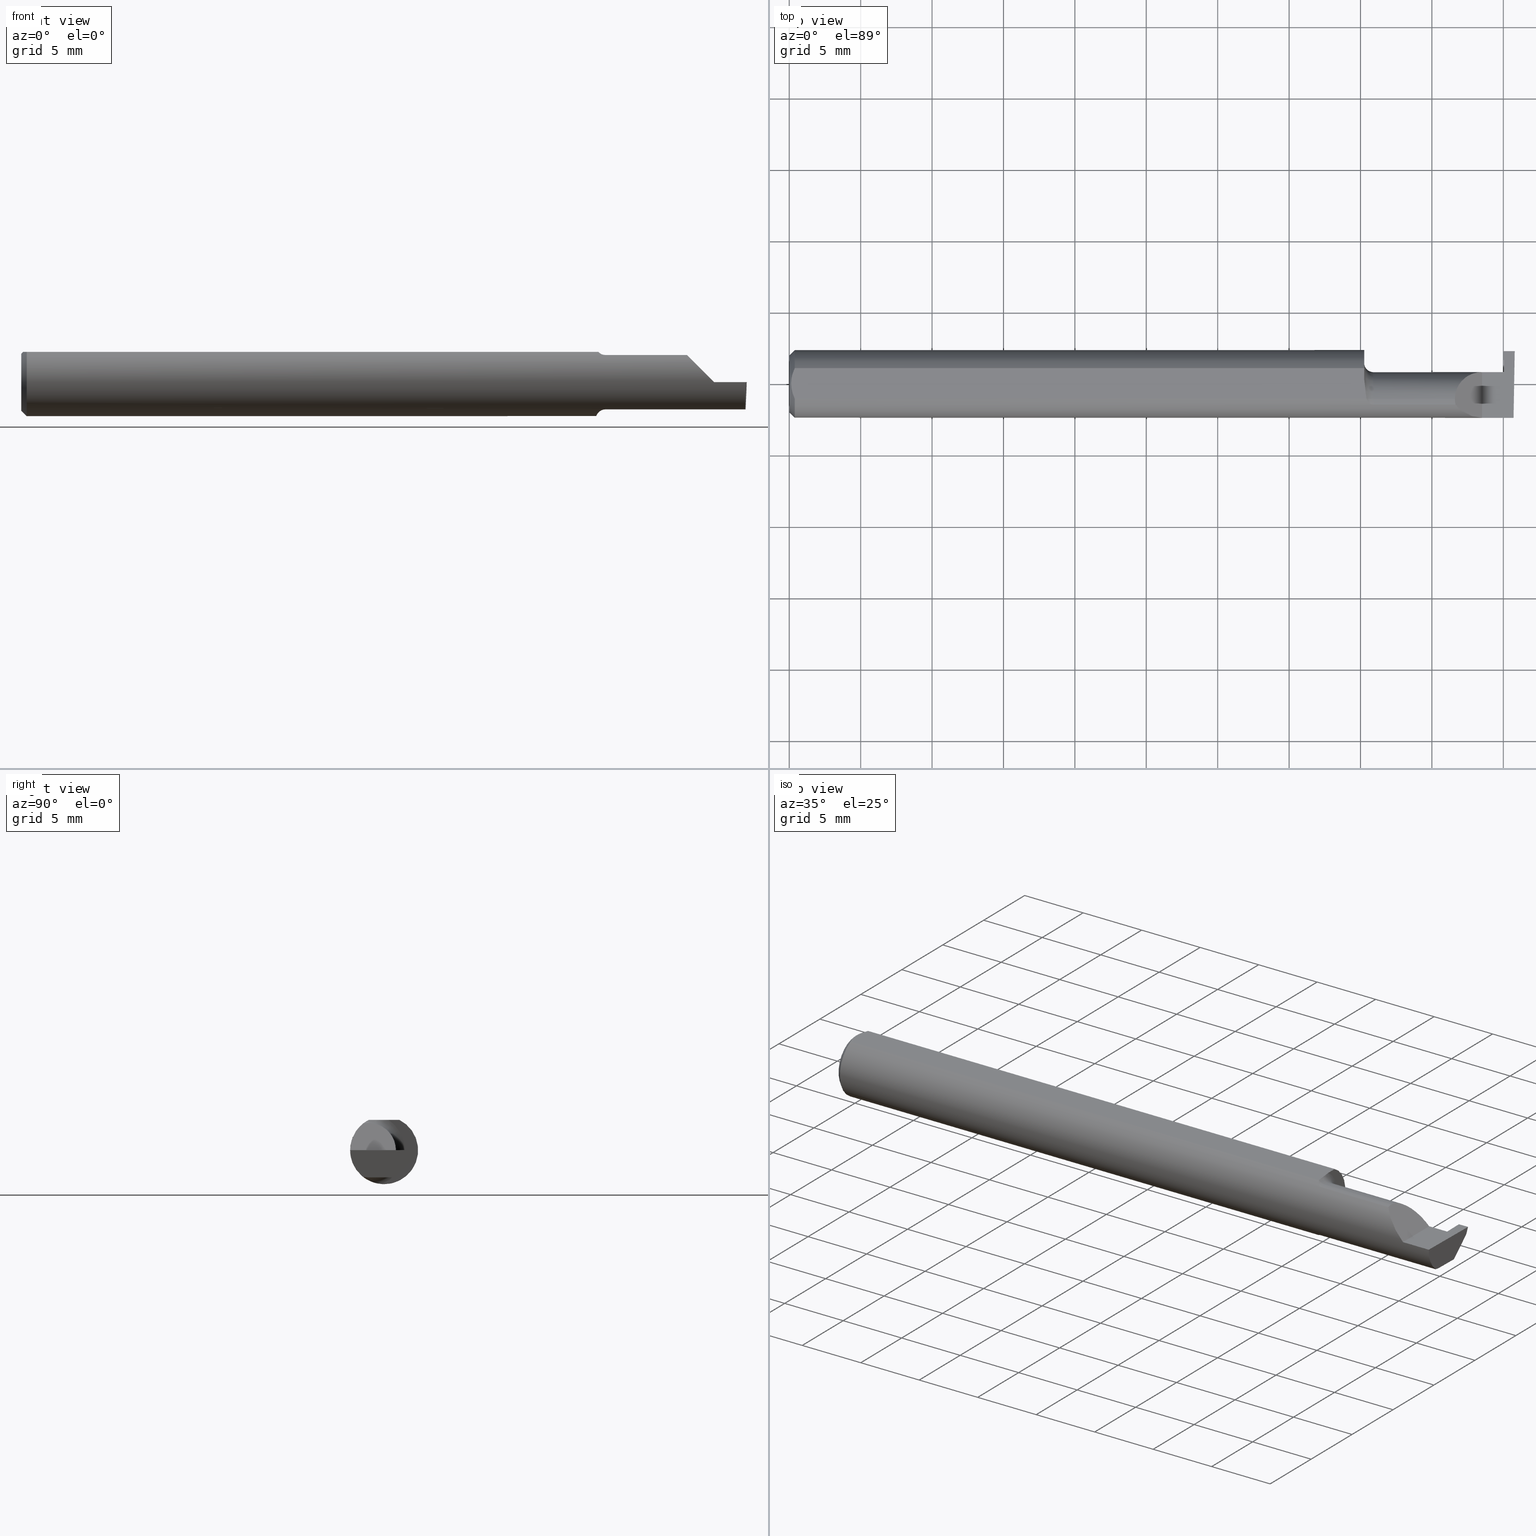
[diagram: canonical four-view strip — front | top / right | iso, engineering-drawing reading convention]
A machine part, canonical four-view strip (front | top / right | iso — engineering-drawing reading convention). The complete STEP part file that produces these views, byte-faithful:
ISO-10303-21;
HEADER;
FILE_DESCRIPTION (( 'STEP AP203' ),
    '1' );
FILE_NAME ('220671-GT030K-6.STEP',
    '2024-07-12T17:37:41',
    ( '' ),
    ( '' ),
    'SwSTEP 2.0',
    'SolidWorks 2024',
    '' );
FILE_SCHEMA (( 'CONFIG_CONTROL_DESIGN' ));
ENDSEC;

DATA;
#1 = AXIS2_PLACEMENT_3D ( 'NONE', #582, #761, #158 ) ;
#2 = CARTESIAN_POINT ( 'NONE',  ( 1.609999999999999654, -0.04259999999999997816, 0.07499999999999999722 ) ) ;
#3 = CARTESIAN_POINT ( 'NONE',  ( 0.004999999999999977553, 0.007308422719211852582, 0.08359999999999999376 ) ) ;
#4 = ORIENTED_EDGE ( 'NONE', *, *, #306, .F. ) ;
#5 = CC_DESIGN_PERSON_AND_ORGANIZATION_ASSIGNMENT ( #697, #511, ( #114 ) ) ;
#6 = LINE ( 'NONE', #779, #389 ) ;
#7 = ORIENTED_EDGE ( 'NONE', *, *, #758, .T. ) ;
#8 = ADVANCED_FACE ( 'NONE', ( #626 ), #497, .F. ) ;
#9 = VECTOR ( 'NONE', #384, 39.37007874015748143 ) ;
#10 = CARTESIAN_POINT ( 'NONE',  ( 1.910000000000000142, -0.09359999999999998876, 1.102182119232621301E-17 ) ) ;
#11 = AXIS2_PLACEMENT_3D ( 'NONE', #543, #486, #181 ) ;
#12 = LINE ( 'NONE', #178, #316 ) ;
#13 = DIRECTION ( 'NONE',  ( 0.02618093032612054533, 0.000000000000000000, 0.9996572206948034500 ) ) ;
#14 = ORIENTED_EDGE ( 'NONE', *, *, #604, .T. ) ;
#15 = CARTESIAN_POINT ( 'NONE',  ( 1.591356684838558300, -0.04259999999999997122, -0.08334386600104412568 ) ) ;
#16 = EDGE_CURVE ( 'NONE', #667, #491, #448, .T. ) ;
#17 = CARTESIAN_POINT ( 'NONE',  ( 1.910000000000000142, -0.1000000000000000056, 1.102182119232621301E-17 ) ) ;
#18 = CARTESIAN_POINT ( 'NONE',  ( 1.588953896433696000, -0.03733827064844358334, -0.08603332211978831356 ) ) ;
#19 = DIRECTION ( 'NONE',  ( 0.000000000000000000, 0.000000000000000000, -1.000000000000000000 ) ) ;
#20 =( BOUNDED_CURVE ( )  B_SPLINE_CURVE ( 3, ( #225, #472, #645, #701 ),
 .UNSPECIFIED., .F., .T. ) 
 B_SPLINE_CURVE_WITH_KNOTS ( ( 4, 4 ),
 ( 0.3794527164476041992, 0.5877155292608622350 ),
 .UNSPECIFIED. ) 
 CURVE ( )  GEOMETRIC_REPRESENTATION_ITEM ( )  RATIONAL_B_SPLINE_CURVE ( ( 1.000000000000000000, 0.9963888149483995926, 0.9963888149483995926, 1.000000000000000000 ) ) 
 REPRESENTATION_ITEM ( '' )  );
#21 = ORIENTED_EDGE ( 'NONE', *, *, #257, .T. ) ;
#22 = APPLICATION_PROTOCOL_DEFINITION ( 'international standard', 'config_control_design', 1994, #519 ) ;
#23 = DIRECTION ( 'NONE',  ( 0.000000000000000000, -1.000000000000000000, 3.463308682636258767E-16 ) ) ;
#24 = EDGE_LOOP ( 'NONE', ( #38, #138, #597, #428, #382, #530, #103 ) ) ;
#25 = APPROVAL_ROLE ( '' ) ;
#26 = CARTESIAN_POINT ( 'NONE',  ( 1.973213402547462803, -0.04260000000000001286, -0.07499999999999998335 ) ) ;
#27 = EDGE_CURVE ( 'NONE', #508, #108, #586, .T. ) ;
#28 = AXIS2_PLACEMENT_3D ( 'NONE', #422, #289, #353 ) ;
#29 = DIRECTION ( 'NONE',  ( -0.000000000000000000, 1.000000000000000000, -0.000000000000000000 ) ) ;
#30 = COORDINATED_UNIVERSAL_TIME_OFFSET ( 8, 0, .BEHIND. ) ;
#31 = CYLINDRICAL_SURFACE ( 'NONE', #642, 0.07499999999999999722 ) ;
#32 = EDGE_LOOP ( 'NONE', ( #191, #157, #342, #763, #459 ) ) ;
#33 = EDGE_CURVE ( 'NONE', #239, #719, #749, .T. ) ;
#34 = PERSON_AND_ORGANIZATION ( #744, #695 ) ;
#35 = VECTOR ( 'NONE', #665, 39.37007874015748143 ) ;
#36 = PERSON_AND_ORGANIZATION ( #744, #695 ) ;
#37 = CARTESIAN_POINT ( 'NONE',  ( 0.000000000000000000, 0.000000000000000000, 0.000000000000000000 ) ) ;
#38 = ORIENTED_EDGE ( 'NONE', *, *, #180, .F. ) ;
#39 = DIRECTION ( 'NONE',  ( 3.192376091677893247E-05, 0.9999999994904366085, -3.463309235184766513E-16 ) ) ;
#40 = EDGE_CURVE ( 'NONE', #288, #683, #569, .T. ) ;
#41 = CARTESIAN_POINT ( 'NONE',  ( 1.973215639910378627, 0.03244570701694830805, -0.07499697642507778539 ) ) ;
#42 = ORIENTED_EDGE ( 'NONE', *, *, #675, .F. ) ;
#43 = CARTESIAN_POINT ( 'NONE',  ( 1.591280153739604630, -0.04243240890922537339, 0.08342952773968856373 ) ) ;
#44 = CARTESIAN_POINT ( 'NONE',  ( 1.970187911046528351, 0.08532170653269689764, -0.01716285901624526114 ) ) ;
#45 = CIRCLE ( 'NONE', #652, 0.09359999999999998876 ) ;
#46 = ORIENTED_EDGE ( 'NONE', *, *, #474, .T. ) ;
#47 = DIRECTION ( 'NONE',  ( -0.03489418134011375294, -0.0006090802009084599154, 0.9993908270190957621 ) ) ;
#48 = ADVANCED_FACE ( 'NONE', ( #441 ), #78, .F. ) ;
#49 = APPROVAL_PERSON_ORGANIZATION ( #576, #646, #25 ) ;
#50 = CARTESIAN_POINT ( 'NONE',  ( 1.899999999999999911, 0.08348456554894213844, -0.01900000000000000300 ) ) ;
#51 = ORIENTED_EDGE ( 'NONE', *, *, #568, .F. ) ;
#52 = LINE ( 'NONE', #228, #63 ) ;
#53 = DIRECTION ( 'NONE',  ( -0.01744642479411312799, -0.9998477995484629233, 3.463134274570152404E-16 ) ) ;
#54 = EDGE_LOOP ( 'NONE', ( #501, #775, #408, #89, #227, #769, #351 ) ) ;
#55 = EDGE_CURVE ( 'NONE', #683, #322, #335, .T. ) ;
#56 = DIRECTION ( 'NONE',  ( -0.7071067811865460184, 0.000000000000000000, 0.7071067811865490160 ) ) ;
#57 = CARTESIAN_POINT ( 'NONE',  ( 1.601469028275930517, -0.05559939362423894915, 0.07530665289274067475 ) ) ;
#58 = EDGE_LOOP ( 'NONE', ( #251, #167, #302, #117, #714 ) ) ;
#59 = CARTESIAN_POINT ( 'NONE',  ( 1.609999999999999654, -0.04259999999999997122, -0.09999999999999999167 ) ) ;
#60 = CARTESIAN_POINT ( 'NONE',  ( 1.584999999999999964, -0.04259999999999998510, 0.000000000000000000 ) ) ;
#61 = ORIENTED_EDGE ( 'NONE', *, *, #196, .F. ) ;
#62 = CC_DESIGN_PERSON_AND_ORGANIZATION_ASSIGNMENT ( #401, #634, ( #199 ) ) ;
#63 = VECTOR ( 'NONE', #658, 39.37007874015748854 ) ;
#64 = CARTESIAN_POINT ( 'NONE',  ( 1.970027797685394821, 0.03157410243558826657, -0.01282266061342995228 ) ) ;
#65 = ADVANCED_FACE ( 'NONE', ( #563 ), #212, .F. ) ;
#66 = CARTESIAN_POINT ( 'NONE',  ( 1.999381723781206599, 0.08348456554894213844, -0.01900000000000000300 ) ) ;
#67 = ORIENTED_EDGE ( 'NONE', *, *, #330, .T. ) ;
#68 = VECTOR ( 'NONE', #29, 39.37007874015748143 ) ;
#69 = LINE ( 'NONE', #369, #334 ) ;
#70 = DIRECTION ( 'NONE',  ( -0.000000000000000000, 1.000000000000000000, 0.000000000000000000 ) ) ;
#71 = ORIENTED_EDGE ( 'NONE', *, *, #260, .F. ) ;
#72 = CARTESIAN_POINT ( 'NONE',  ( 1.972956086143512255, 0.03244268712522564713, -0.07004187842367261274 ) ) ;
#73 = AXIS2_PLACEMENT_3D ( 'NONE', #735, #125, #623 ) ;
#74 = ORIENTED_EDGE ( 'NONE', *, *, #604, .F. ) ;
#75 = CARTESIAN_POINT ( 'NONE',  ( 1.789749999999999730, -0.05810704225352112534, 0.07337936794867826185 ) ) ;
#76 = CARTESIAN_POINT ( 'NONE',  ( 1.593086474849918499, -0.04638796853538176834, -0.08140770120152256151 ) ) ;
#77 = VERTEX_POINT ( 'NONE', #748 ) ;
#78 = PLANE ( 'NONE',  #449 ) ;
#79 = VECTOR ( 'NONE', #506, 39.37007874015748143 ) ;
#80 = VERTEX_POINT ( 'NONE', #140 ) ;
#81 = APPROVAL_PERSON_ORGANIZATION ( #323, #303, #446 ) ;
#82 = CARTESIAN_POINT ( 'NONE',  ( 1.970284083932823727, 0.08348456554894213844, -0.01899999999999999953 ) ) ;
#83 = DIRECTION ( 'NONE',  ( -0.03084274406794414863, -0.7067703747110382073, -0.7067703747110356538 ) ) ;
#84 = CARTESIAN_POINT ( 'NONE',  ( 1.607653034764491506, -0.05810704225352129881, -0.07337936794867812307 ) ) ;
#85 = SECURITY_CLASSIFICATION_LEVEL ( 'unclassified' ) ;
#86 = CARTESIAN_POINT ( 'NONE',  ( 2.000000000000000000, -0.04259999999999999204, -0.07499999999999998335 ) ) ;
#87 = EDGE_CURVE ( 'NONE', #488, #508, #205, .T. ) ;
#88 = CARTESIAN_POINT ( 'NONE',  ( 2.000000000000000444, 0.09040000000000000813, -4.722041942173579765E-17 ) ) ;
#89 = ORIENTED_EDGE ( 'NONE', *, *, #55, .F. ) ;
#90 = APPROVAL_DATE_TIME ( #443, #646 ) ;
#91 = PLANE ( 'NONE',  #489 ) ;
#92 = EDGE_CURVE ( 'NONE', #705, #221, #635, .T. ) ;
#93 = CARTESIAN_POINT ( 'NONE',  ( 1.866066017177982594, 0.03240000000000000518, 0.04393398282201787380 ) ) ;
#94 = ORIENTED_EDGE ( 'NONE', *, *, #474, .F. ) ;
#95 = CARTESIAN_POINT ( 'NONE',  ( 1.609999999999999654, -0.04259999999999997816, 0.000000000000000000 ) ) ;
#96 =( BOUNDED_CURVE ( )  B_SPLINE_CURVE ( 3, ( #407, #214, #341, #349 ),
 .UNSPECIFIED., .F., .T. ) 
 B_SPLINE_CURVE_WITH_KNOTS ( ( 4, 4 ),
 ( 6.074922494366329140, 6.283185307179586232 ),
 .UNSPECIFIED. ) 
 CURVE ( )  GEOMETRIC_REPRESENTATION_ITEM ( )  RATIONAL_B_SPLINE_CURVE ( ( 1.000000000000000000, 0.9963888149483995926, 0.9963888149483995926, 1.000000000000000000 ) ) 
 REPRESENTATION_ITEM ( '' )  );
#97 = CARTESIAN_POINT ( 'NONE',  ( 1.996789369178486595, -0.09359999999634724399, 1.727064904157919157E-17 ) ) ;
#98 = ADVANCED_BREP_SHAPE_REPRESENTATION ( '220671-GT030K-6', ( #361, #395 ), #455 ) ;
#99 = VECTOR ( 'NONE', #172, 39.37007874015748854 ) ;
#100 = VERTEX_POINT ( 'NONE', #88 ) ;
#101 = DIRECTION ( 'NONE',  ( 0.000000000000000000, 0.0006094513490878464149, -0.9999998142845092364 ) ) ;
#102 = CARTESIAN_POINT ( 'NONE',  ( 0.01499999999999999944, 0.000000000000000000, 0.000000000000000000 ) ) ;
#103 = ORIENTED_EDGE ( 'NONE', *, *, #92, .F. ) ;
#104 = ADVANCED_FACE ( 'NONE', ( #229 ), #465, .T. ) ;
#105 = DIRECTION ( 'NONE',  ( 1.000000000000000000, 0.000000000000000000, 0.000000000000000000 ) ) ;
#106 = CARTESIAN_POINT ( 'NONE',  ( 1.996678706298551820, -0.09994204647866641866, 4.067411700506801675E-19 ) ) ;
#107 = CIRCLE ( 'NONE', #452, 0.02500000000000007425 ) ;
#108 = VERTEX_POINT ( 'NONE', #461 ) ;
#109 = AXIS2_PLACEMENT_3D ( 'NONE', #177, #547, #309 ) ;
#110 = DIRECTION ( 'NONE',  ( -7.219510806010324627E-16, 0.9999998142845093474, 0.0006094513490878471738 ) ) ;
#111 = EDGE_CURVE ( 'NONE', #667, #641, #579, .T. ) ;
#112 = PRODUCT_DEFINITION_FORMATION_WITH_SPECIFIED_SOURCE ( 'ANY', '', #114, .NOT_KNOWN. ) ;
#113 = CARTESIAN_POINT ( 'NONE',  ( 1.599746577633803568, -0.05429945193459817521, 0.07626038032150797563 ) ) ;
#114 = PRODUCT ( '220671-GT030K-6', '220671-GT030K-6', '', ( #149 ) ) ;
#115 = ORIENTED_EDGE ( 'NONE', *, *, #440, .T. ) ;
#116 = LINE ( 'NONE', #219, #99 ) ;
#117 = ORIENTED_EDGE ( 'NONE', *, *, #668, .T. ) ;
#118 = EDGE_CURVE ( 'NONE', #413, #552, #560, .T. ) ;
#119 = DIRECTION ( 'NONE',  ( -1.000000000000000000, -0.000000000000000000, -0.000000000000000000 ) ) ;
#120 = EDGE_LOOP ( 'NONE', ( #684, #261, #123, #680, #451 ) ) ;
#121 = EDGE_CURVE ( 'NONE', #466, #265, #20, .T. ) ;
#122 = DIRECTION ( 'NONE',  ( 0.000000000000000000, -0.000000000000000000, 1.000000000000000000 ) ) ;
#123 = ORIENTED_EDGE ( 'NONE', *, *, #16, .F. ) ;
#124 = VECTOR ( 'NONE', #577, 39.37007874015748143 ) ;
#125 = DIRECTION ( 'NONE',  ( -1.000000000000000000, -0.000000000000000000, -0.000000000000000000 ) ) ;
#126 = AXIS2_PLACEMENT_3D ( 'NONE', #194, #691, #633 ) ;
#127 = DIRECTION ( 'NONE',  ( 0.000000000000000000, 0.000000000000000000, 1.000000000000000000 ) ) ;
#128 = VERTEX_POINT ( 'NONE', #97 ) ;
#129 = AXIS2_PLACEMENT_3D ( 'NONE', #37, #513, #416 ) ;
#130 =( LENGTH_UNIT ( ) NAMED_UNIT ( * ) SI_UNIT ( $, .METRE. ) );
#131 = EDGE_CURVE ( 'NONE', #295, #280, #716, .T. ) ;
#132 = AXIS2_PLACEMENT_3D ( 'NONE', #50, #287, #169 ) ;
#133 = ORIENTED_EDGE ( 'NONE', *, *, #524, .T. ) ;
#134 = CARTESIAN_POINT ( 'NONE',  ( 1.972825615918400111, -0.1004734632187760518, 3.327902248433222370E-18 ) ) ;
#135 = AXIS2_PLACEMENT_3D ( 'NONE', #415, #105, #419 ) ;
#136 = EDGE_CURVE ( 'NONE', #128, #100, #713, .T. ) ;
#137 = CARTESIAN_POINT ( 'NONE',  ( 1.584999999999999520, 0.000000000000000000, 0.000000000000000000 ) ) ;
#138 = ORIENTED_EDGE ( 'NONE', *, *, #136, .T. ) ;
#139 = CALENDAR_DATE ( 2024, 12, 7 ) ;
#140 = CARTESIAN_POINT ( 'NONE',  ( 0.000000000000000000, 0.000000000000000000, -0.07860000000000001708 ) ) ;
#141 = EDGE_LOOP ( 'NONE', ( #591, #660, #726, #356 ) ) ;
#142 = APPROVAL_STATUS ( 'not_yet_approved' ) ;
#143 = DIRECTION ( 'NONE',  ( 0.000000000000000000, 0.000000000000000000, 1.000000000000000000 ) ) ;
#144 = CARTESIAN_POINT ( 'NONE',  ( 1.591129652885479029, -0.04209513035970094408, 0.08359999999999999376 ) ) ;
#145 = CIRCLE ( 'NONE', #593, 0.07499999999999999722 ) ;
#146 = PLANE ( 'NONE',  #664 ) ;
#147 = CARTESIAN_POINT ( 'NONE',  ( 1.999287184445666998, 0.08131816941191072345, -0.02116639613703141104 ) ) ;
#148 = ORIENTED_EDGE ( 'NONE', *, *, #290, .F. ) ;
#149 = MECHANICAL_CONTEXT ( 'NONE', #535, 'mechanical' ) ;
#150 = CC_DESIGN_APPROVAL ( #303, ( #112 ) ) ;
#151 = CARTESIAN_POINT ( 'NONE',  ( 1.974734127201016820, 0.09049136203013630197, -0.1499086240528643976 ) ) ;
#152 = CARTESIAN_POINT ( 'NONE',  ( 1.595264545693809044, -0.04993027844100268037, -0.07924826417278514612 ) ) ;
#153 = EDGE_CURVE ( 'NONE', #77, #243, #96, .T. ) ;
#154 = COORDINATED_UNIVERSAL_TIME_OFFSET ( 8, 0, .BEHIND. ) ;
#155 = DIRECTION ( 'NONE',  ( 0.000000000000000000, 0.000000000000000000, -1.000000000000000000 ) ) ;
#156 = DIRECTION ( 'NONE',  ( 0.01744642479411313840, 0.9998477995484629233, -2.135106780035502721E-18 ) ) ;
#157 = ORIENTED_EDGE ( 'NONE', *, *, #196, .T. ) ;
#158 = DIRECTION ( 'NONE',  ( 0.000000000000000000, 0.000000000000000000, 1.000000000000000000 ) ) ;
#159 = LINE ( 'NONE', #590, #767 ) ;
#160 = VERTEX_POINT ( 'NONE', #529 ) ;
#161 = LINE ( 'NONE', #765, #672 ) ;
#162 = CARTESIAN_POINT ( 'NONE',  ( 0.01499999999999999944, 1.146269404001922621E-17, 0.09359999999999998876 ) ) ;
#163 = VECTOR ( 'NONE', #286, 39.37007874015748143 ) ;
#164 = VERTEX_POINT ( 'NONE', #774 ) ;
#165 = VECTOR ( 'NONE', #457, 39.37007874015748143 ) ;
#166 = FACE_OUTER_BOUND ( 'NONE', #313, .T. ) ;
#167 = ORIENTED_EDGE ( 'NONE', *, *, #440, .F. ) ;
#168 = EDGE_CURVE ( 'NONE', #705, #77, #599, .T. ) ;
#169 = DIRECTION ( 'NONE',  ( 0.000000000000000000, -0.7071067811865487940, -0.7071067811865462405 ) ) ;
#170 = EDGE_LOOP ( 'NONE', ( #183, #326, #575, #482, #254, #612 ) ) ;
#171 = VECTOR ( 'NONE', #311, 39.37007874015748854 ) ;
#172 = DIRECTION ( 'NONE',  ( -0.03056411404777942264, -0.3418603543644915255, -0.9392536042231929283 ) ) ;
#173 = DESIGN_CONTEXT ( 'detailed design', #519, 'design' ) ;
#174 = CARTESIAN_POINT ( 'NONE',  ( 1.607655343791670077, -0.05810704225352127106, 0.07337936794867813695 ) ) ;
#175 = ORIENTED_EDGE ( 'NONE', *, *, #118, .T. ) ;
#176 = ADVANCED_FACE ( 'NONE', ( #329 ), #718, .F. ) ;
#177 = CARTESIAN_POINT ( 'NONE',  ( 1.609999999999999654, -0.04259999999999998510, 0.000000000000000000 ) ) ;
#178 = CARTESIAN_POINT ( 'NONE',  ( 1.584999999999999520, -0.09360000000000003040, 0.08359999999999999376 ) ) ;
#179 = EDGE_LOOP ( 'NONE', ( #372, #270, #42, #74, #266, #602, #310, #737 ) ) ;
#180 = EDGE_CURVE ( 'NONE', #128, #705, #159, .T. ) ;
#181 = DIRECTION ( 'NONE',  ( 0.000000000000000000, 0.000000000000000000, -1.000000000000000000 ) ) ;
#182 = CARTESIAN_POINT ( 'NONE',  ( 1.995715029210241465, -0.04259999999999997816, -0.07499999999999998335 ) ) ;
#183 = ORIENTED_EDGE ( 'NONE', *, *, #40, .T. ) ;
#184 = VECTOR ( 'NONE', #83, 39.37007874015748854 ) ;
#185 = DIRECTION ( 'NONE',  ( -1.000000000000000000, -0.000000000000000000, -0.000000000000000000 ) ) ;
#186 = B_SPLINE_CURVE_WITH_KNOTS ( 'NONE', 3,
 ( #15, #18, #304, #613, #433, #373 ),
 .UNSPECIFIED., .F., .F.,
 ( 4, 2, 4 ),
 ( 0.0007041963409106363411, 0.001193146413573859584, 0.001682096486237082827 ),
 .UNSPECIFIED. ) ;
#187 = DIRECTION ( 'NONE',  ( 0.000000000000000000, -0.3420201433256696566, -0.9396926207859079838 ) ) ;
#188 = ORIENTED_EDGE ( 'NONE', *, *, #476, .F. ) ;
#189 = DIRECTION ( 'NONE',  ( -1.000000000000000000, -7.220189035068029059E-16, 1.224646799147358877E-16 ) ) ;
#190 = CARTESIAN_POINT ( 'NONE',  ( 0.01499999999999999944, -0.04209513035969836975, 0.08359999999999999376 ) ) ;
#191 = ORIENTED_EDGE ( 'NONE', *, *, #403, .F. ) ;
#192 = FACE_OUTER_BOUND ( 'NONE', #297, .T. ) ;
#193 = EDGE_CURVE ( 'NONE', #243, #221, #374, .T. ) ;
#194 = CARTESIAN_POINT ( 'NONE',  ( 1.970284083932825281, -1.938781723943636903, -0.02023247314723548851 ) ) ;
#195 = APPROVAL_DATE_TIME ( #509, #707 ) ;
#196 = EDGE_CURVE ( 'NONE', #439, #285, #336, .T. ) ;
#197 = DIRECTION ( 'NONE',  ( -0.000000000000000000, 3.463308682636258767E-16, 1.000000000000000000 ) ) ;
#198 = COORDINATED_UNIVERSAL_TIME_OFFSET ( 8, 0, .BEHIND. ) ;
#199 = PRODUCT_DEFINITION ( 'UNKNOWN', '', #112, #173 ) ;
#200 = CIRCLE ( 'NONE', #1, 0.07860000000000001708 ) ;
#201 = CARTESIAN_POINT ( 'NONE',  ( 1.973215639910379959, -1.938747615474559094, -0.07619832307789187187 ) ) ;
#202 = ORIENTED_EDGE ( 'NONE', *, *, #260, .T. ) ;
#203 = EDGE_CURVE ( 'NONE', #638, #230, #45, .T. ) ;
#204 = PERSON_AND_ORGANIZATION_ROLE ( 'creator' ) ;
#205 = CIRCLE ( 'NONE', #414, 0.07499999999999999722 ) ;
#206 = DIRECTION ( 'NONE',  ( -1.000000000000000000, -0.000000000000000000, -0.000000000000000000 ) ) ;
#207 = ORIENTED_EDGE ( 'NONE', *, *, #668, .F. ) ;
#208 = CARTESIAN_POINT ( 'NONE',  ( 0.000000000000000000, 0.000000000000000000, 0.000000000000000000 ) ) ;
#209 = AXIS2_PLACEMENT_3D ( 'NONE', #438, #782, #127 ) ;
#210 = CARTESIAN_POINT ( 'NONE',  ( 0.01499999999999999944, 0.000000000000000000, 0.000000000000000000 ) ) ;
#211 = CIRCLE ( 'NONE', #622, 0.09999999999999999167 ) ;
#212 = PLANE ( 'NONE',  #544 ) ;
#213 = EDGE_CURVE ( 'NONE', #160, #618, #107, .T. ) ;
#214 = CARTESIAN_POINT ( 'NONE',  ( 1.835542168554754827, -0.05300374992736064245, 0.07445783144524570352 ) ) ;
#215 = EDGE_LOOP ( 'NONE', ( #732, #218, #421, #442, #51 ) ) ;
#216 = DIRECTION ( 'NONE',  ( 1.000000000000000000, 0.000000000000000000, 0.000000000000000000 ) ) ;
#217 = CARTESIAN_POINT ( 'NONE',  ( 0.01499999999999999944, 0.000000000000000000, -0.09359999999999998876 ) ) ;
#218 = ORIENTED_EDGE ( 'NONE', *, *, #531, .F. ) ;
#219 = CARTESIAN_POINT ( 'NONE',  ( 1.999906583493247902, 0.08935513411407894346, -0.002870745427926570548 ) ) ;
#220 = CARTESIAN_POINT ( 'NONE',  ( 1.835000000000000409, -0.04259999999999998510, 0.07499999999999999722 ) ) ;
#221 = VERTEX_POINT ( 'NONE', #762 ) ;
#222 = LOCAL_TIME ( 10, 37, 41.00000000000000000, #267 ) ;
#223 = FACE_OUTER_BOUND ( 'NONE', #215, .T. ) ;
#224 = CC_DESIGN_PERSON_AND_ORGANIZATION_ASSIGNMENT ( #565, #204, ( #112 ) ) ;
#225 = CARTESIAN_POINT ( 'NONE',  ( 1.995486889784650497, -0.05810704225352112534, -0.07337936794867826185 ) ) ;
#226 = VECTOR ( 'NONE', #110, 39.37007874015747433 ) ;
#227 = ORIENTED_EDGE ( 'NONE', *, *, #476, .T. ) ;
#228 = CARTESIAN_POINT ( 'NONE',  ( 1.994172072281005459, -0.09355431490906530867, -0.09996576130738767108 ) ) ;
#229 = FACE_OUTER_BOUND ( 'NONE', #702, .T. ) ;
#230 = VERTEX_POINT ( 'NONE', #217 ) ;
#231 = EDGE_CURVE ( 'NONE', #164, #641, #587, .T. ) ;
#232 = DIRECTION ( 'NONE',  ( 0.04124162102273654790, 0.0006089328293544636487, -0.9991490168619624468 ) ) ;
#233 = CARTESIAN_POINT ( 'NONE',  ( 0.01499999999999999598, 0.04209513035969836975, 0.08359999999999999376 ) ) ;
#234 = VERTEX_POINT ( 'NONE', #358 ) ;
#235 = EDGE_CURVE ( 'NONE', #322, #719, #12, .T. ) ;
#236 = CIRCLE ( 'NONE', #109, 0.07499999999999999722 ) ;
#237 = FACE_OUTER_BOUND ( 'NONE', #485, .T. ) ;
#238 = DIRECTION ( 'NONE',  ( -1.000000000000000000, -0.000000000000000000, -0.000000000000000000 ) ) ;
#239 = VERTEX_POINT ( 'NONE', #427 ) ;
#240 = AXIS2_PLACEMENT_3D ( 'NONE', #585, #648, #56 ) ;
#241 = FACE_OUTER_BOUND ( 'NONE', #32, .T. ) ;
#242 = FACE_OUTER_BOUND ( 'NONE', #58, .T. ) ;
#243 = VERTEX_POINT ( 'NONE', #301 ) ;
#244 = CARTESIAN_POINT ( 'NONE',  ( 1.584999999999999520, -0.04259999999999998510, 0.000000000000000000 ) ) ;
#245 = CARTESIAN_POINT ( 'NONE',  ( 1.969499999999999806, 0.03240000000000001212, 5.082262127853098687E-17 ) ) ;
#246 = EDGE_CURVE ( 'NONE', #80, #439, #629, .T. ) ;
#247 = ORIENTED_EDGE ( 'NONE', *, *, #524, .F. ) ;
#248 = AXIS2_PLACEMENT_3D ( 'NONE', #434, #487, #605 ) ;
#249 = FACE_OUTER_BOUND ( 'NONE', #54, .T. ) ;
#250 = CARTESIAN_POINT ( 'NONE',  ( 1.997436282896842386, 0.05604437736224970185, -0.07500000000000002498 ) ) ;
#251 = ORIENTED_EDGE ( 'NONE', *, *, #601, .F. ) ;
#252 = EDGE_CURVE ( 'NONE', #638, #285, #445, .T. ) ;
#253 = CARTESIAN_POINT ( 'NONE',  ( 1.973215639910378627, 0.02748456554894204706, -0.07499999999999996947 ) ) ;
#254 = ORIENTED_EDGE ( 'NONE', *, *, #252, .T. ) ;
#255 = CARTESIAN_POINT ( 'NONE',  ( 1.899999999999999911, 0.08348456554894213844, -0.01900000000000000300 ) ) ;
#256 = VERTEX_POINT ( 'NONE', #66 ) ;
#257 = EDGE_CURVE ( 'NONE', #647, #618, #145, .T. ) ;
#258 = CARTESIAN_POINT ( 'NONE',  ( 0.000000000000000000, 0.04209513035969836975, 0.08359999999999999376 ) ) ;
#259 = B_SPLINE_CURVE_WITH_KNOTS ( 'NONE', 3,
 ( #756, #447, #628, #686, #393, #551 ),
 .UNSPECIFIED., .F., .F.,
 ( 4, 2, 4 ),
 ( 0.002614097267282502243, 0.003163218599391118095, 0.003712339931499734381 ),
 .UNSPECIFIED. ) ;
#260 = EDGE_CURVE ( 'NONE', #491, #265, #481, .T. ) ;
#261 = ORIENTED_EDGE ( 'NONE', *, *, #375, .T. ) ;
#262 = CIRCLE ( 'NONE', #368, 0.09359999999999998876 ) ;
#263 = DIRECTION ( 'NONE',  ( -1.000000000000000000, -0.000000000000000000, -0.000000000000000000 ) ) ;
#264 = LINE ( 'NONE', #258, #79 ) ;
#265 = VERTEX_POINT ( 'NONE', #182 ) ;
#266 = ORIENTED_EDGE ( 'NONE', *, *, #193, .T. ) ;
#267 = COORDINATED_UNIVERSAL_TIME_OFFSET ( 8, 0, .BEHIND. ) ;
#268 = DIRECTION ( 'NONE',  ( 0.03490478697967554916, 0.000000000000000000, -0.9993906422645267851 ) ) ;
#269 = FACE_OUTER_BOUND ( 'NONE', #317, .T. ) ;
#270 = ORIENTED_EDGE ( 'NONE', *, *, #601, .T. ) ;
#271 = ORIENTED_EDGE ( 'NONE', *, *, #246, .T. ) ;
#272 = LENGTH_MEASURE_WITH_UNIT ( LENGTH_MEASURE( 0.02539999999999999897 ), #130 );
#273 = VECTOR ( 'NONE', #492, 39.37007874015748143 ) ;
#274 = DIRECTION ( 'NONE',  ( 0.7071067811865481278, 8.659560562354925463E-17, 0.7071067811865469066 ) ) ;
#275 = CALENDAR_DATE ( 2024, 12, 7 ) ;
#276 = ADVANCED_FACE ( 'NONE', ( #611 ), #545, .T. ) ;
#277 = CARTESIAN_POINT ( 'NONE',  ( 1.609999999999999654, -0.04259999999999997816, 0.09999999999999999167 ) ) ;
#278 = ORIENTED_EDGE ( 'NONE', *, *, #685, .F. ) ;
#279 = LINE ( 'NONE', #467, #298 ) ;
#280 = VERTEX_POINT ( 'NONE', #615 ) ;
#281 = CARTESIAN_POINT ( 'NONE',  ( 1.975744671832483812, 0.03249136206948450428, -0.1499086886162006860 ) ) ;
#282 = VECTOR ( 'NONE', #53, 39.37007874015748854 ) ;
#283 = UNCERTAINTY_MEASURE_WITH_UNIT (LENGTH_MEASURE( 1.000000000000000082E-05 ), #314, 'distance_accuracy_value', 'NONE');
#284 = CARTESIAN_POINT ( 'NONE',  ( 1.970284083932823727, 0.02994487577554294511, -0.01903262984222201318 ) ) ;
#285 = VERTEX_POINT ( 'NONE', #494 ) ;
#286 = DIRECTION ( 'NONE',  ( 0.7071067811865481278, 0.000000000000000000, -0.7071067811865469066 ) ) ;
#287 = DIRECTION ( 'NONE',  ( 0.000000000000000000, -0.7071067811865462405, 0.7071067811865487940 ) ) ;
#288 = VERTEX_POINT ( 'NONE', #190 ) ;
#289 = DIRECTION ( 'NONE',  ( 1.000000000000000000, 0.000000000000000000, 0.000000000000000000 ) ) ;
#290 = EDGE_CURVE ( 'NONE', #385, #588, #6, .T. ) ;
#291 = DIRECTION ( 'NONE',  ( 0.000000000000000000, -0.9396926207859080948, 0.3420201433256697121 ) ) ;
#292 = ORIENTED_EDGE ( 'NONE', *, *, #306, .T. ) ;
#293 = DIRECTION ( 'NONE',  ( -0.03699114979479856125, 0.7066228325057372084, 0.7066228325057346549 ) ) ;
#294 = CARTESIAN_POINT ( 'NONE',  ( 1.995486889784650497, -0.05810704225352112534, -0.07337936794867826185 ) ) ;
#295 = VERTEX_POINT ( 'NONE', #245 ) ;
#296 = PLANE ( 'NONE',  #522 ) ;
#297 = EDGE_LOOP ( 'NONE', ( #546, #7, #518 ) ) ;
#298 = VECTOR ( 'NONE', #293, 39.37007874015748854 ) ;
#299 = VECTOR ( 'NONE', #312, 39.37007874015748143 ) ;
#300 = DIRECTION ( 'NONE',  ( 0.000000000000000000, 0.000000000000000000, 1.000000000000000000 ) ) ;
#301 = CARTESIAN_POINT ( 'NONE',  ( 1.835000000000000409, -0.04259999999999998510, 0.07499999999999999722 ) ) ;
#302 = ORIENTED_EDGE ( 'NONE', *, *, #121, .F. ) ;
#303 = APPROVAL ( #745, 'UNSPECIFIED' ) ;
#304 = CARTESIAN_POINT ( 'NONE',  ( 1.587415450430337271, -0.03151229630690470518, -0.08835846806355296401 ) ) ;
#305 = CARTESIAN_POINT ( 'NONE',  ( 1.591356684838558300, -0.04259999999999997816, 0.08334386600104415344 ) ) ;
#306 = EDGE_CURVE ( 'NONE', #160, #647, #400, .T. ) ;
#307 = ORIENTED_EDGE ( 'NONE', *, *, #213, .F. ) ;
#308 = AXIS2_PLACEMENT_3D ( 'NONE', #666, #122, #556 ) ;
#309 = DIRECTION ( 'NONE',  ( 0.000000000000000000, 0.000000000000000000, 1.000000000000000000 ) ) ;
#310 = ORIENTED_EDGE ( 'NONE', *, *, #131, .T. ) ;
#311 = DIRECTION ( 'NONE',  ( 0.01742050049977865098, -0.9998482515673751125, -2.130797594925076716E-18 ) ) ;
#312 = DIRECTION ( 'NONE',  ( 1.000000000000000000, 0.000000000000000000, 0.000000000000000000 ) ) ;
#313 = EDGE_LOOP ( 'NONE', ( #61, #760, #783, #473, #609 ) ) ;
#314 =( CONVERSION_BASED_UNIT ( 'INCH', #272 ) LENGTH_UNIT ( ) NAMED_UNIT ( #746 ) );
#315 = CARTESIAN_POINT ( 'NONE',  ( 1.584999999999999520, 0.003280657920457031966, 0.08359999999999999376 ) ) ;
#316 = VECTOR ( 'NONE', #70, 39.37007874015748143 ) ;
#317 = EDGE_LOOP ( 'NONE', ( #175, #133, #431, #507, #94 ) ) ;
#318 = CALENDAR_DATE ( 2024, 12, 7 ) ;
#319 = LINE ( 'NONE', #380, #9 ) ;
#320 = CARTESIAN_POINT ( 'NONE',  ( 1.605389671955115727, -0.05750350940205799927, -0.07386306649500064270 ) ) ;
#321 = CC_DESIGN_APPROVAL ( #707, ( #527 ) ) ;
#322 = VERTEX_POINT ( 'NONE', #600 ) ;
#323 = PERSON_AND_ORGANIZATION ( #744, #695 ) ;
#324 = ADVANCED_FACE ( 'NONE', ( #549 ), #296, .F. ) ;
#325 = CARTESIAN_POINT ( 'NONE',  ( 1.599728336617688651, -0.05428341532129050961, -0.07627162539867091140 ) ) ;
#326 = ORIENTED_EDGE ( 'NONE', *, *, #55, .T. ) ;
#327 =( NAMED_UNIT ( * ) PLANE_ANGLE_UNIT ( ) SI_UNIT ( $, .RADIAN. ) );
#328 = CARTESIAN_POINT ( 'NONE',  ( 1.970510542377208685, 0.03240000000000000518, 1.887975845471880136E-17 ) ) ;
#329 = FACE_OUTER_BOUND ( 'NONE', #120, .T. ) ;
#330 = EDGE_CURVE ( 'NONE', #466, #234, #570, .T. ) ;
#331 = ORIENTED_EDGE ( 'NONE', *, *, #578, .F. ) ;
#332 = DATE_TIME_ROLE ( 'creation_date' ) ;
#333 = DIRECTION ( 'NONE',  ( 0.05230942393460498441, 0.000000000000000000, -0.9986309249005009825 ) ) ;
#334 = VECTOR ( 'NONE', #185, 39.37007874015748143 ) ;
#335 = B_SPLINE_CURVE_WITH_KNOTS ( 'NONE', 3,
 ( #144, #381, #561, #624, #315, #740 ),
 .UNSPECIFIED., .F., .F.,
 ( 4, 2, 4 ),
 ( 0.009672910729349781800, 0.01035804079918456987, 0.01104317086901935793 ),
 .UNSPECIFIED. ) ;
#336 = LINE ( 'NONE', #162, #348 ) ;
#337 = ADVANCED_FACE ( 'NONE', ( #242 ), #728, .T. ) ;
#338 = EDGE_LOOP ( 'NONE', ( #521, #202, #115, #46 ) ) ;
#339 = LINE ( 'NONE', #639, #502 ) ;
#340 = AXIS2_PLACEMENT_3D ( 'NONE', #781, #720, #101 ) ;
#341 = CARTESIAN_POINT ( 'NONE',  ( 1.835000000000000409, -0.04781600192481531147, 0.07499999999999999722 ) ) ;
#342 = ORIENTED_EDGE ( 'NONE', *, *, #252, .F. ) ;
#343 = PLANE ( 'NONE',  #28 ) ;
#344 = ADVANCED_FACE ( 'NONE', ( #430 ), #671, .T. ) ;
#345 = DIRECTION ( 'NONE',  ( 0.000000000000000000, 0.000000000000000000, -1.000000000000000000 ) ) ;
#346 = ORIENTED_EDGE ( 'NONE', *, *, #403, .T. ) ;
#347 = CARTESIAN_POINT ( 'NONE',  ( 1.609999999999999654, -0.04259999999999997122, -0.07499999999999999722 ) ) ;
#348 = VECTOR ( 'NONE', #274, 39.37007874015748143 ) ;
#349 = CARTESIAN_POINT ( 'NONE',  ( 1.835000000000000409, -0.04259999999999998510, 0.07499999999999999722 ) ) ;
#350 = CONICAL_SURFACE ( 'NONE', #135, 0.09359999999999998876, 0.7853981633974473908 ) ;
#351 = ORIENTED_EDGE ( 'NONE', *, *, #675, .T. ) ;
#352 = LOCAL_TIME ( 10, 37, 41.00000000000000000, #154 ) ;
#353 = DIRECTION ( 'NONE',  ( 0.000000000000000000, 0.000000000000000000, -1.000000000000000000 ) ) ;
#354 = EDGE_CURVE ( 'NONE', #221, #295, #319, .T. ) ;
#355 = CARTESIAN_POINT ( 'NONE',  ( 1.609999999999999654, -0.05810704225352114616, 0.07337936794867824797 ) ) ;
#356 = ORIENTED_EDGE ( 'NONE', *, *, #193, .F. ) ;
#357 = CARTESIAN_POINT ( 'NONE',  ( 1.973216550246185141, 0.05600049788445093241, -0.07500000000000002498 ) ) ;
#358 = CARTESIAN_POINT ( 'NONE',  ( 1.996788249052547481, -0.09359999022555406945, -4.277588313357508156E-05 ) ) ;
#359 = ORIENTED_EDGE ( 'NONE', *, *, #558, .T. ) ;
#360 = CARTESIAN_POINT ( 'NONE',  ( 1.591129652885479029, -0.04209513035970094408, 0.08359999999999999376 ) ) ;
#361 = MANIFOLD_SOLID_BREP ( 'Front Angle', #644 ) ;
#362 = DIRECTION ( 'NONE',  ( 0.000000000000000000, 0.000000000000000000, 1.000000000000000000 ) ) ;
#363 = EDGE_LOOP ( 'NONE', ( #584, #71, #673, #729, #478, #331, #526 ) ) ;
#364 = CARTESIAN_POINT ( 'NONE',  ( 2.000000000000000000, 0.03240000000000002600, 1.170704816173023527E-32 ) ) ;
#365 = CARTESIAN_POINT ( 'NONE',  ( 1.609999999999999654, -0.04259999999999998510, 0.000000000000000000 ) ) ;
#366 = ORIENTED_EDGE ( 'NONE', *, *, #180, .T. ) ;
#367 = CC_DESIGN_PERSON_AND_ORGANIZATION_ASSIGNMENT ( #36, #450, ( #527 ) ) ;
#368 = AXIS2_PLACEMENT_3D ( 'NONE', #210, #206, #456 ) ;
#369 = CARTESIAN_POINT ( 'NONE',  ( 1.789749999999999730, -0.05810704225352112534, -0.07337936794867826185 ) ) ;
#370 = EDGE_CURVE ( 'NONE', #719, #638, #264, .T. ) ;
#371 = DIRECTION ( 'NONE',  ( 0.000000000000000000, 0.000000000000000000, 1.000000000000000000 ) ) ;
#372 = ORIENTED_EDGE ( 'NONE', *, *, #118, .F. ) ;
#373 = CARTESIAN_POINT ( 'NONE',  ( 1.584999999999999520, -0.006757276995305157297, -0.09335576686851604356 ) ) ;
#374 =( BOUNDED_CURVE ( )  B_SPLINE_CURVE ( 3, ( #220, #404, #93, #637 ),
 .UNSPECIFIED., .F., .T. ) 
 B_SPLINE_CURVE_WITH_KNOTS ( ( 4, 4 ),
 ( 0.000000000000000000, 1.570796326794896558 ),
 .UNSPECIFIED. ) 
 CURVE ( )  GEOMETRIC_REPRESENTATION_ITEM ( )  RATIONAL_B_SPLINE_CURVE ( ( 1.000000000000000000, 0.8047378541243649375, 0.8047378541243649375, 1.000000000000000000 ) ) 
 REPRESENTATION_ITEM ( '' )  );
#375 = EDGE_CURVE ( 'NONE', #256, #491, #752, .T. ) ;
#376 = ORIENTED_EDGE ( 'NONE', *, *, #290, .T. ) ;
#377 = AXIS2_PLACEMENT_3D ( 'NONE', #59, #539, #437 ) ;
#378 = CARTESIAN_POINT ( 'NONE',  ( 1.584999999999999520, 0.04209513035969834893, 0.08359999999999999376 ) ) ;
#379 = ADVANCED_FACE ( 'NONE', ( #269 ), #91, .F. ) ;
#380 = CARTESIAN_POINT ( 'NONE',  ( 1.584999999999999964, 0.03240000000000000518, 5.082284216461540301E-17 ) ) ;
#381 = CARTESIAN_POINT ( 'NONE',  ( 1.591082007218903360, -0.03301619840524110810, 0.08359999999999997988 ) ) ;
#382 = ORIENTED_EDGE ( 'NONE', *, *, #754, .T. ) ;
#383 = APPROVAL_ROLE ( '' ) ;
#384 = DIRECTION ( 'NONE',  ( 1.000000000000000000, 0.000000000000000000, 0.000000000000000000 ) ) ;
#385 = VERTEX_POINT ( 'NONE', #82 ) ;
#386 = EDGE_LOOP ( 'NONE', ( #148, #651, #606, #631 ) ) ;
#387 = APPROVAL_DATE_TIME ( #636, #303 ) ;
#388 = ORIENTED_EDGE ( 'NONE', *, *, #257, .F. ) ;
#389 = VECTOR ( 'NONE', #608, 39.37007874015748854 ) ;
#390 = VERTEX_POINT ( 'NONE', #328 ) ;
#391 = ADVANCED_FACE ( 'NONE', ( #689 ), #146, .T. ) ;
#392 = COORDINATED_UNIVERSAL_TIME_OFFSET ( 8, 0, .BEHIND. ) ;
#393 = CARTESIAN_POINT ( 'NONE',  ( 0.01206089165507020187, -0.03555991978469316694, 0.08359999999999999376 ) ) ;
#394 = CARTESIAN_POINT ( 'NONE',  ( 1.609999999999999654, -0.05810704225352111146, -0.07337936794867826185 ) ) ;
#395 = AXIS2_PLACEMENT_3D ( 'NONE', #208, #580, #681 ) ;
#396 = CALENDAR_DATE ( 2024, 12, 7 ) ;
#397 = LINE ( 'NONE', #86, #124 ) ;
#398 = EDGE_CURVE ( 'NONE', #285, #288, #259, .T. ) ;
#399 = DIRECTION ( 'NONE',  ( -1.000000000000000000, -0.000000000000000000, -0.000000000000000000 ) ) ;
#400 = B_SPLINE_CURVE_WITH_KNOTS ( 'NONE', 3,
 ( #305, #722, #533, #113, #57, #731, #174, #355 ),
 .UNSPECIFIED., .F., .F.,
 ( 4, 2, 2, 4 ),
 ( 1.584523690453573094E-05, 0.0003656721978374746925, 0.0005405856783039505531, 0.0007154991587704265764 ),
 .UNSPECIFIED. ) ;
#401 = PERSON_AND_ORGANIZATION ( #744, #695 ) ;
#402 = CARTESIAN_POINT ( 'NONE',  ( 1.997382703856816377, 0.09044568507411565594, -0.09996573249755573431 ) ) ;
#403 = EDGE_CURVE ( 'NONE', #439, #80, #200, .T. ) ;
#404 = CARTESIAN_POINT ( 'NONE',  ( 1.835000000000000187, 0.001333982822017879596, 0.07499999999999998335 ) ) ;
#405 = EDGE_LOOP ( 'NONE', ( #495, #14, #388, #709 ) ) ;
#406 = DIRECTION ( 'NONE',  ( -1.000000000000000000, -0.000000000000000000, -0.000000000000000000 ) ) ;
#407 = CARTESIAN_POINT ( 'NONE',  ( 1.836620632051322310, -0.05810704225352113922, 0.07337936794867826185 ) ) ;
#408 = ORIENTED_EDGE ( 'NONE', *, *, #738, .F. ) ;
#409 = ADVANCED_FACE ( 'NONE', ( #464 ), #516, .F. ) ;
#410 = CARTESIAN_POINT ( 'NONE',  ( 1.996937940439960757, 0.02748456554894194992, -0.07499999999999998335 ) ) ;
#411 = VECTOR ( 'NONE', #47, 39.37007874015748854 ) ;
#412 = DIRECTION ( 'NONE',  ( -1.000000000000000000, -0.000000000000000000, -0.000000000000000000 ) ) ;
#413 = VERTEX_POINT ( 'NONE', #26 ) ;
#414 = AXIS2_PLACEMENT_3D ( 'NONE', #696, #399, #630 ) ;
#415 = CARTESIAN_POINT ( 'NONE',  ( 0.01499999999999999944, 0.000000000000000000, 0.000000000000000000 ) ) ;
#416 = DIRECTION ( 'NONE',  ( 0.000000000000000000, 0.000000000000000000, 1.000000000000000000 ) ) ;
#417 = ORIENTED_EDGE ( 'NONE', *, *, #27, .F. ) ;
#418 = ADVANCED_FACE ( 'NONE', ( #703 ), #31, .T. ) ;
#419 = DIRECTION ( 'NONE',  ( 0.000000000000000000, 0.000000000000000000, -1.000000000000000000 ) ) ;
#420 = DIRECTION ( 'NONE',  ( -1.000000000000000000, -0.000000000000000000, -0.000000000000000000 ) ) ;
#421 = ORIENTED_EDGE ( 'NONE', *, *, #131, .F. ) ;
#422 = CARTESIAN_POINT ( 'NONE',  ( 0.000000000000000000, 0.000000000000000000, 0.000000000000000000 ) ) ;
#423 = ADVANCED_FACE ( 'NONE', ( #573 ), #505, .F. ) ;
#424 = DIRECTION ( 'NONE',  ( 0.05230943362269508540, 0.0006086169641121964109, -0.9986307389317954364 ) ) ;
#425 = ORIENTED_EDGE ( 'NONE', *, *, #578, .T. ) ;
#426 = LINE ( 'NONE', #364, #655 ) ;
#427 = CARTESIAN_POINT ( 'NONE',  ( 1.584999999999999520, -0.006757276995305157297, -0.09335576686851604356 ) ) ;
#428 = ORIENTED_EDGE ( 'NONE', *, *, #710, .T. ) ;
#429 = LINE ( 'NONE', #674, #35 ) ;
#430 = FACE_OUTER_BOUND ( 'NONE', #170, .T. ) ;
#431 = ORIENTED_EDGE ( 'NONE', *, *, #231, .T. ) ;
#432 = EDGE_CURVE ( 'NONE', #230, #288, #262, .T. ) ;
#433 = CARTESIAN_POINT ( 'NONE',  ( 1.584999999999999520, -0.01308640439514264717, -0.09289765197734373148 ) ) ;
#434 = CARTESIAN_POINT ( 'NONE',  ( 1.584999999999999964, -0.04259999999999998510, 0.000000000000000000 ) ) ;
#435 = ORIENTED_EDGE ( 'NONE', *, *, #693, .F. ) ;
#436 = AXIS2_PLACEMENT_3D ( 'NONE', #137, #499, #19 ) ;
#437 = DIRECTION ( 'NONE',  ( 0.000000000000000000, 0.000000000000000000, 1.000000000000000000 ) ) ;
#438 = CARTESIAN_POINT ( 'NONE',  ( 0.000000000000000000, 0.000000000000000000, 0.000000000000000000 ) ) ;
#439 = VERTEX_POINT ( 'NONE', #694 ) ;
#440 = EDGE_CURVE ( 'NONE', #265, #413, #397, .T. ) ;
#441 = FACE_OUTER_BOUND ( 'NONE', #24, .T. ) ;
#442 = ORIENTED_EDGE ( 'NONE', *, *, #754, .F. ) ;
#443 = DATE_AND_TIME ( #318, #352 ) ;
#444 = CARTESIAN_POINT ( 'NONE',  ( 1.591356684838558300, -0.04259999999999997122, -0.08334386600104412568 ) ) ;
#445 = B_SPLINE_CURVE_WITH_KNOTS ( 'NONE', 3,
 ( #233, #662, #490, #736, #3, #540 ),
 .UNSPECIFIED., .F., .F.,
 ( 4, 2, 4 ),
 ( 0.001518921481343300838, 0.002066509374312901649, 0.002614097267282502243 ),
 .UNSPECIFIED. ) ;
#446 = APPROVAL_ROLE ( '' ) ;
#447 = CARTESIAN_POINT ( 'NONE',  ( 0.004999999999999974083, -0.007328888879231052096, 0.08359999999999997988 ) ) ;
#448 = LINE ( 'NONE', #687, #299 ) ;
#449 = AXIS2_PLACEMENT_3D ( 'NONE', #510, #743, #757 ) ;
#450 = PERSON_AND_ORGANIZATION_ROLE ( 'classification_officer' ) ;
#451 = ORIENTED_EDGE ( 'NONE', *, *, #463, .T. ) ;
#452 = AXIS2_PLACEMENT_3D ( 'NONE', #277, #517, #345 ) ;
#453 = PERSON_AND_ORGANIZATION_ROLE ( 'design_supplier' ) ;
#454 = ADVANCED_FACE ( 'NONE', ( #237 ), #343, .F. ) ;
#455 =( GEOMETRIC_REPRESENTATION_CONTEXT ( 3 ) GLOBAL_UNCERTAINTY_ASSIGNED_CONTEXT ( ( #283 ) ) GLOBAL_UNIT_ASSIGNED_CONTEXT ( ( #314, #327, #755 ) ) REPRESENTATION_CONTEXT ( 'NONE', 'WORKASPACE' ) );
#456 = DIRECTION ( 'NONE',  ( 0.000000000000000000, 0.000000000000000000, 1.000000000000000000 ) ) ;
#457 = DIRECTION ( 'NONE',  ( 1.000000000000000000, 0.000000000000000000, 0.000000000000000000 ) ) ;
#458 = CC_DESIGN_APPROVAL ( #646, ( #199 ) ) ;
#459 = ORIENTED_EDGE ( 'NONE', *, *, #550, .F. ) ;
#460 = DIRECTION ( 'NONE',  ( -0.9995051766793262571, 0.01744044634007060196, 0.02617694830739122208 ) ) ;
#461 = CARTESIAN_POINT ( 'NONE',  ( 1.591356684838558300, -0.04259999999999997122, -0.08334386600104412568 ) ) ;
#462 = ORIENTED_EDGE ( 'NONE', *, *, #203, .F. ) ;
#463 = EDGE_CURVE ( 'NONE', #641, #385, #279, .T. ) ;
#464 = FACE_OUTER_BOUND ( 'NONE', #363, .T. ) ;
#465 = CYLINDRICAL_SURFACE ( 'NONE', #129, 0.09359999999999998876 ) ;
#466 = VERTEX_POINT ( 'NONE', #483 ) ;
#467 = CARTESIAN_POINT ( 'NONE',  ( 1.970187911046528573, 0.08532170653269677274, -0.01716285901624537910 ) ) ;
#468 = CARTESIAN_POINT ( 'NONE',  ( 1.836620632051322310, -0.05810704225352113922, 0.07337936794867826185 ) ) ;
#469 = ORIENTED_EDGE ( 'NONE', *, *, #235, .F. ) ;
#470 = CARTESIAN_POINT ( 'NONE',  ( 1.609999999999999654, -0.05810704225352111146, -0.07337936794867826185 ) ) ;
#471 = AXIS2_PLACEMENT_3D ( 'NONE', #402, #460, #13 ) ;
#472 = CARTESIAN_POINT ( 'NONE',  ( 1.995547692684114249, -0.05300374992736063551, -0.07445783144524571739 ) ) ;
#473 = ORIENTED_EDGE ( 'NONE', *, *, #432, .T. ) ;
#474 = EDGE_CURVE ( 'NONE', #413, #667, #770, .T. ) ;
#475 = FACE_OUTER_BOUND ( 'NONE', #141, .T. ) ;
#476 = EDGE_CURVE ( 'NONE', #683, #160, #698, .T. ) ;
#477 = VECTOR ( 'NONE', #156, 39.37007874015748854 ) ;
#478 = ORIENTED_EDGE ( 'NONE', *, *, #136, .F. ) ;
#479 = ADVANCED_FACE ( 'NONE', ( #536 ), #747, .F. ) ;
#480 = LINE ( 'NONE', #594, #163 ) ;
#481 = LINE ( 'NONE', #250, #282 ) ;
#482 = ORIENTED_EDGE ( 'NONE', *, *, #370, .T. ) ;
#483 = CARTESIAN_POINT ( 'NONE',  ( 1.995486889784650497, -0.05810704225352112534, -0.07337936794867826185 ) ) ;
#484 = CARTESIAN_POINT ( 'NONE',  ( 1.995561922431088098, -0.08091355869144019330, -0.05531953381055033925 ) ) ;
#485 = EDGE_LOOP ( 'NONE', ( #271, #346 ) ) ;
#486 = DIRECTION ( 'NONE',  ( 1.000000000000000000, 0.000000000000000000, 0.000000000000000000 ) ) ;
#487 = DIRECTION ( 'NONE',  ( -1.000000000000000000, -0.000000000000000000, -0.000000000000000000 ) ) ;
#488 = VERTEX_POINT ( 'NONE', #347 ) ;
#489 = AXIS2_PLACEMENT_3D ( 'NONE', #201, #699, #333 ) ;
#490 = CARTESIAN_POINT ( 'NONE',  ( 0.009492654797564226143, 0.02859466010166631864, 0.08360000000000000764 ) ) ;
#491 = VERTEX_POINT ( 'NONE', #410 ) ;
#492 = DIRECTION ( 'NONE',  ( 1.000000000000000000, -0.000000000000000000, -0.000000000000000000 ) ) ;
#493 = LOCAL_TIME ( 10, 37, 41.00000000000000000, #30 ) ;
#494 = CARTESIAN_POINT ( 'NONE',  ( 0.004999999999999986226, 1.025183015402604432E-17, 0.08359999999999999376 ) ) ;
#495 = ORIENTED_EDGE ( 'NONE', *, *, #153, .T. ) ;
#496 = DIRECTION ( 'NONE',  ( -1.000000000000000000, -0.000000000000000000, -0.000000000000000000 ) ) ;
#497 = PLANE ( 'NONE',  #126 ) ;
#498 = CARTESIAN_POINT ( 'NONE',  ( 1.609999999999999654, -0.04259999999999997816, 0.000000000000000000 ) ) ;
#499 = DIRECTION ( 'NONE',  ( 1.000000000000000000, 0.000000000000000000, 0.000000000000000000 ) ) ;
#500 = APPLICATION_PROTOCOL_DEFINITION ( 'international standard', 'config_control_design', 1994, #535 ) ;
#501 = ORIENTED_EDGE ( 'NONE', *, *, #758, .F. ) ;
#502 = VECTOR ( 'NONE', #712, 39.37007874015748143 ) ;
#503 = DATE_AND_TIME ( #396, #493 ) ;
#504 = CC_DESIGN_PERSON_AND_ORGANIZATION_ASSIGNMENT ( #572, #453, ( #112 ) ) ;
#505 = PLANE ( 'NONE',  #711 ) ;
#506 = DIRECTION ( 'NONE',  ( -1.000000000000000000, -0.000000000000000000, -0.000000000000000000 ) ) ;
#507 = ORIENTED_EDGE ( 'NONE', *, *, #111, .F. ) ;
#508 = VERTEX_POINT ( 'NONE', #470 ) ;
#509 = DATE_AND_TIME ( #275, #222 ) ;
#510 = CARTESIAN_POINT ( 'NONE',  ( 2.000000000000000000, -0.1000000000000000056, 0.000000000000000000 ) ) ;
#511 = PERSON_AND_ORGANIZATION_ROLE ( 'design_owner' ) ;
#512 = TOROIDAL_SURFACE ( 'NONE', #73, 0.09999999999999999167, 0.02500000000000007425 ) ;
#513 = DIRECTION ( 'NONE',  ( -1.000000000000000000, -0.000000000000000000, -0.000000000000000000 ) ) ;
#514 = ADVANCED_FACE ( 'NONE', ( #223 ), #643, .F. ) ;
#515 = ORIENTED_EDGE ( 'NONE', *, *, #168, .T. ) ;
#516 = PLANE ( 'NONE',  #471 ) ;
#517 = DIRECTION ( 'NONE',  ( 0.000000000000000000, -1.000000000000000000, 0.000000000000000000 ) ) ;
#518 = ORIENTED_EDGE ( 'NONE', *, *, #87, .T. ) ;
#519 = APPLICATION_CONTEXT ( 'configuration controlled 3d designs of mechanical parts and assemblies' ) ;
#520 = DIRECTION ( 'NONE',  ( -1.000000000000000000, -0.000000000000000000, -0.000000000000000000 ) ) ;
#521 = ORIENTED_EDGE ( 'NONE', *, *, #16, .T. ) ;
#522 = AXIS2_PLACEMENT_3D ( 'NONE', #659, #291, #187 ) ;
#523 = LINE ( 'NONE', #717, #682 ) ;
#524 = EDGE_CURVE ( 'NONE', #552, #164, #603, .T. ) ;
#525 = CARTESIAN_POINT ( 'NONE',  ( 1.973214534726833724, -0.007134900077140332759, -0.07499999999999999722 ) ) ;
#526 = ORIENTED_EDGE ( 'NONE', *, *, #330, .F. ) ;
#527 = SECURITY_CLASSIFICATION ( '', '', #85 ) ;
#528 = PLANE ( 'NONE',  #240 ) ;
#529 = CARTESIAN_POINT ( 'NONE',  ( 1.591356684838558300, -0.04259999999999997816, 0.08334386600104415344 ) ) ;
#530 = ORIENTED_EDGE ( 'NONE', *, *, #354, .F. ) ;
#531 = EDGE_CURVE ( 'NONE', #280, #164, #161, .T. ) ;
#532 = CARTESIAN_POINT ( 'NONE',  ( 1.591129652885479029, -0.04209513035970094408, 0.08359999999999999376 ) ) ;
#533 = CARTESIAN_POINT ( 'NONE',  ( 1.595259025420518784, -0.04992838138009422083, 0.07925011723318650669 ) ) ;
#534 = ORIENTED_EDGE ( 'NONE', *, *, #700, .T. ) ;
#535 = APPLICATION_CONTEXT ( 'configuration controlled 3d designs of mechanical parts and assemblies' ) ;
#536 = FACE_OUTER_BOUND ( 'NONE', #657, .T. ) ;
#537 = CARTESIAN_POINT ( 'NONE',  ( 1.996026586675631709, -0.09358669535931163352, -0.02913391928411206838 ) ) ;
#538 = ORIENTED_EDGE ( 'NONE', *, *, #741, .F. ) ;
#539 = DIRECTION ( 'NONE',  ( -0.000000000000000000, 1.000000000000000000, 1.224646799147353207E-16 ) ) ;
#540 = CARTESIAN_POINT ( 'NONE',  ( 0.004999999999999986226, 1.025183015402604432E-17, 0.08359999999999999376 ) ) ;
#541 = VECTOR ( 'NONE', #39, 39.37007874015748854 ) ;
#542 = EDGE_LOOP ( 'NONE', ( #772, #359, #538, #376 ) ) ;
#543 = CARTESIAN_POINT ( 'NONE',  ( 0.01499999999999999944, 0.000000000000000000, 0.000000000000000000 ) ) ;
#544 = AXIS2_PLACEMENT_3D ( 'NONE', #557, #197, #23 ) ;
#545 = CYLINDRICAL_SURFACE ( 'NONE', #690, 0.07499999999999999722 ) ;
#546 = ORIENTED_EDGE ( 'NONE', *, *, #27, .T. ) ;
#547 = DIRECTION ( 'NONE',  ( -1.000000000000000000, -0.000000000000000000, -0.000000000000000000 ) ) ;
#548 = VECTOR ( 'NONE', #424, 39.37007874015748854 ) ;
#549 = FACE_OUTER_BOUND ( 'NONE', #542, .T. ) ;
#550 = EDGE_CURVE ( 'NONE', #80, #230, #480, .T. ) ;
#551 = CARTESIAN_POINT ( 'NONE',  ( 0.01499999999999999944, -0.04209513035969836975, 0.08359999999999999376 ) ) ;
#552 = VERTEX_POINT ( 'NONE', #773 ) ;
#553 = VECTOR ( 'NONE', #730, 39.37007874015748143 ) ;
#554 = CARTESIAN_POINT ( 'NONE',  ( 1.609999999999999654, -0.05810704225352114616, 0.07337936794867824797 ) ) ;
#555 = LOCAL_TIME ( 10, 37, 41.00000000000000000, #392 ) ;
#556 = DIRECTION ( 'NONE',  ( 1.000000000000000000, 0.000000000000000000, -0.000000000000000000 ) ) ;
#557 = CARTESIAN_POINT ( 'NONE',  ( 2.000000000000000000, 0.05599964285600403380, -0.07500000000000002498 ) ) ;
#558 = EDGE_CURVE ( 'NONE', #100, #256, #116, .T. ) ;
#559 = DIRECTION ( 'NONE',  ( -1.000000000000000000, -0.000000000000000000, -0.000000000000000000 ) ) ;
#560 =( BOUNDED_CURVE ( )  B_SPLINE_CURVE ( 3, ( #759, #525, #650, #284 ),
 .UNSPECIFIED., .F., .F. ) 
 B_SPLINE_CURVE_WITH_KNOTS ( ( 4, 4 ),
 ( 3.140983202202990654, 4.455205321888862535 ),
 .UNSPECIFIED. ) 
 CURVE ( )  GEOMETRIC_REPRESENTATION_ITEM ( )  RATIONAL_B_SPLINE_CURVE ( ( 1.000000000000000000, 0.8611734602017913076, 0.8611734602017913076, 1.000000000000000000 ) ) 
 REPRESENTATION_ITEM ( '' )  );
#561 = CARTESIAN_POINT ( 'NONE',  ( 1.589570820222980130, -0.02392027542784326555, 0.08360000000000000764 ) ) ;
#562 = ORIENTED_EDGE ( 'NONE', *, *, #33, .T. ) ;
#563 = FACE_OUTER_BOUND ( 'NONE', #338, .T. ) ;
#564 = PRODUCT_RELATED_PRODUCT_CATEGORY ( 'detail', '', ( #114 ) ) ;
#565 = PERSON_AND_ORGANIZATION ( #744, #695 ) ;
#566 = CARTESIAN_POINT ( 'NONE',  ( 1.584999999999999520, 0.1323999999999999899, 0.000000000000000000 ) ) ;
#567 = CC_DESIGN_SECURITY_CLASSIFICATION ( #527, ( #112 ) ) ;
#568 = EDGE_CURVE ( 'NONE', #641, #390, #589, .T. ) ;
#569 = LINE ( 'NONE', #574, #165 ) ;
#570 =( BOUNDED_CURVE ( )  B_SPLINE_CURVE ( 3, ( #294, #484, #537, #725 ),
 .UNSPECIFIED., .F., .T. ) 
 B_SPLINE_CURVE_WITH_KNOTS ( ( 4, 4 ),
 ( 0.08204942185700578317, 0.9826237902196912621 ),
 .UNSPECIFIED. ) 
 CURVE ( )  GEOMETRIC_REPRESENTATION_ITEM ( )  RATIONAL_B_SPLINE_CURVE ( ( 1.000000000000000000, 0.9335481000009943076, 0.9335481000009943076, 1.000000000000000000 ) ) 
 REPRESENTATION_ITEM ( '' )  );
#571 = AXIS2_PLACEMENT_3D ( 'NONE', #95, #520, #598 ) ;
#572 = PERSON_AND_ORGANIZATION ( #744, #695 ) ;
#573 = FACE_OUTER_BOUND ( 'NONE', #386, .T. ) ;
#574 = CARTESIAN_POINT ( 'NONE',  ( 0.000000000000000000, -0.04209513035969836975, 0.08359999999999999376 ) ) ;
#575 = ORIENTED_EDGE ( 'NONE', *, *, #235, .T. ) ;
#576 = PERSON_AND_ORGANIZATION ( #744, #695 ) ;
#577 = DIRECTION ( 'NONE',  ( -1.000000000000000000, -0.000000000000000000, -0.000000000000000000 ) ) ;
#578 = EDGE_CURVE ( 'NONE', #234, #128, #52, .T. ) ;
#579 = LINE ( 'NONE', #44, #715 ) ;
#580 = DIRECTION ( 'NONE',  ( 0.000000000000000000, 0.000000000000000000, 1.000000000000000000 ) ) ;
#581 = TOROIDAL_SURFACE ( 'NONE', #679, 0.09999999999999999167, 0.02500000000000007425 ) ;
#582 = CARTESIAN_POINT ( 'NONE',  ( 0.000000000000000000, 0.000000000000000000, 0.000000000000000000 ) ) ;
#583 = DIRECTION ( 'NONE',  ( 0.000000000000000000, 0.000000000000000000, 1.000000000000000000 ) ) ;
#584 = ORIENTED_EDGE ( 'NONE', *, *, #121, .T. ) ;
#585 = CARTESIAN_POINT ( 'NONE',  ( 1.910000000000000142, -0.1000000000000000056, 1.102182119232621301E-17 ) ) ;
#586 = B_SPLINE_CURVE_WITH_KNOTS ( 'NONE', 3,
 ( #394, #84, #320, #678, #325, #152, #76, #444 ),
 .UNSPECIFIED., .F., .F.,
 ( 4, 2, 2, 4 ),
 ( 1.968126669309311202E-07, 0.0001761966947278539039, 0.0003521965767887768836, 0.0007041963409106363411 ),
 .UNSPECIFIED. ) ;
#587 = LINE ( 'NONE', #41, #548 ) ;
#588 = VERTEX_POINT ( 'NONE', #724 ) ;
#589 = LINE ( 'NONE', #281, #411 ) ;
#590 = CARTESIAN_POINT ( 'NONE',  ( 2.999519565323743132E-32, -0.09359999999999998876, 2.449293598294717754E-16 ) ) ;
#591 = ORIENTED_EDGE ( 'NONE', *, *, #153, .F. ) ;
#592 = CC_DESIGN_DATE_AND_TIME_ASSIGNMENT ( #503, #332, ( #199 ) ) ;
#593 = AXIS2_PLACEMENT_3D ( 'NONE', #365, #119, #371 ) ;
#594 = CARTESIAN_POINT ( 'NONE',  ( 0.01499999999999999944, 0.000000000000000000, -0.09359999999999998876 ) ) ;
#595 = ADVANCED_FACE ( 'NONE', ( #475 ), #528, .F. ) ;
#596 = CARTESIAN_POINT ( 'NONE',  ( 1.854690286057537829, -0.08092595952420826577, 0.05530971394246238237 ) ) ;
#597 = ORIENTED_EDGE ( 'NONE', *, *, #776, .F. ) ;
#598 = DIRECTION ( 'NONE',  ( 0.000000000000000000, 0.000000000000000000, 1.000000000000000000 ) ) ;
#599 =( BOUNDED_CURVE ( )  B_SPLINE_CURVE ( 3, ( #656, #708, #596, #468 ),
 .UNSPECIFIED., .F., .F. ) 
 B_SPLINE_CURVE_WITH_KNOTS ( ( 4, 4 ),
 ( 4.712388980384689674, 5.613420356061718408 ),
 .UNSPECIFIED. ) 
 CURVE ( )  GEOMETRIC_REPRESENTATION_ITEM ( )  RATIONAL_B_SPLINE_CURVE ( ( 1.000000000000000000, 0.9334817841311876530, 0.9334817841311876530, 1.000000000000000000 ) ) 
 REPRESENTATION_ITEM ( '' )  );
#600 = CARTESIAN_POINT ( 'NONE',  ( 1.584999999999999520, 0.01227294415283364248, 0.08359999999999999376 ) ) ;
#601 = EDGE_CURVE ( 'NONE', #413, #488, #523, .T. ) ;
#602 = ORIENTED_EDGE ( 'NONE', *, *, #354, .T. ) ;
#603 = LINE ( 'NONE', #654, #226 ) ;
#604 = EDGE_CURVE ( 'NONE', #243, #618, #339, .T. ) ;
#605 = DIRECTION ( 'NONE',  ( 0.000000000000000000, 0.000000000000000000, 1.000000000000000000 ) ) ;
#606 = ORIENTED_EDGE ( 'NONE', *, *, #568, .T. ) ;
#607 = LINE ( 'NONE', #134, #171 ) ;
#608 = DIRECTION ( 'NONE',  ( -0.03874971116600877535, 0.3417632683796886228, 0.9389868626722014389 ) ) ;
#609 = ORIENTED_EDGE ( 'NONE', *, *, #398, .F. ) ;
#610 = DIRECTION ( 'NONE',  ( 0.000000000000000000, 0.000000000000000000, 1.000000000000000000 ) ) ;
#611 = FACE_OUTER_BOUND ( 'NONE', #179, .T. ) ;
#612 = ORIENTED_EDGE ( 'NONE', *, *, #398, .T. ) ;
#613 = CARTESIAN_POINT ( 'NONE',  ( 1.585436655799338901, -0.01945041057485635827, -0.09177104786119411051 ) ) ;
#614 = ADVANCED_FACE ( 'NONE', ( #166 ), #350, .T. ) ;
#615 = CARTESIAN_POINT ( 'NONE',  ( 1.969499999999999806, 0.03239999167003616148, -3.534818988850973635E-05 ) ) ;
#616 = CARTESIAN_POINT ( 'NONE',  ( 1.584999999999999964, -0.04259999999999998510, 0.000000000000000000 ) ) ;
#617 = AXIS2_PLACEMENT_3D ( 'NONE', #771, #766, #704 ) ;
#618 = VERTEX_POINT ( 'NONE', #2 ) ;
#619 = LINE ( 'NONE', #75, #553 ) ;
#620 = ADVANCED_FACE ( 'NONE', ( #192 ), #581, .F. ) ;
#621 = ORIENTED_EDGE ( 'NONE', *, *, #33, .F. ) ;
#622 = AXIS2_PLACEMENT_3D ( 'NONE', #244, #559, #300 ) ;
#623 = DIRECTION ( 'NONE',  ( 0.000000000000000000, 0.000000000000000000, 1.000000000000000000 ) ) ;
#624 = CARTESIAN_POINT ( 'NONE',  ( 1.586463898467976641, -0.005727447913487648465, 0.08359999999999997988 ) ) ;
#625 = ORIENTED_EDGE ( 'NONE', *, *, #531, .T. ) ;
#626 = FACE_OUTER_BOUND ( 'NONE', #780, .T. ) ;
#627 = ORIENTED_EDGE ( 'NONE', *, *, #40, .F. ) ;
#628 = CARTESIAN_POINT ( 'NONE',  ( 0.005975039161239316735, -0.01453776427033148973, 0.08360000000000000764 ) ) ;
#629 = CIRCLE ( 'NONE', #209, 0.07860000000000001708 ) ;
#630 = DIRECTION ( 'NONE',  ( 0.000000000000000000, 0.000000000000000000, 1.000000000000000000 ) ) ;
#631 = ORIENTED_EDGE ( 'NONE', *, *, #710, .F. ) ;
#632 = APPROVAL_STATUS ( 'not_yet_approved' ) ;
#633 = DIRECTION ( 'NONE',  ( 0.04124161337655599807, 0.000000000000000000, -0.9991492027350562521 ) ) ;
#634 = PERSON_AND_ORGANIZATION_ROLE ( 'creator' ) ;
#635 = LINE ( 'NONE', #17, #68 ) ;
#636 = DATE_AND_TIME ( #750, #669 ) ;
#637 = CARTESIAN_POINT ( 'NONE',  ( 1.910000000000000142, 0.03240000000000002600, 1.102182119232621301E-17 ) ) ;
#638 = VERTEX_POINT ( 'NONE', #670 ) ;
#639 = CARTESIAN_POINT ( 'NONE',  ( 1.584999999999999964, -0.04259999999999998510, 0.07499999999999999722 ) ) ;
#640 = DIRECTION ( 'NONE',  ( -0.03699114979480102455, 0.7066228325057372084, 0.7066228325057346549 ) ) ;
#641 = VERTEX_POINT ( 'NONE', #72 ) ;
#642 = AXIS2_PLACEMENT_3D ( 'NONE', #616, #263, #143 ) ;
#643 = PLANE ( 'NONE',  #340 ) ;
#644 = CLOSED_SHELL ( 'NONE', ( #276, #418, #620, #733, #768, #104, #344, #48, #595, #614, #454, #479, #391, #337, #65, #176, #324, #514, #423, #379, #8, #409 ) ) ;
#645 = CARTESIAN_POINT ( 'NONE',  ( 1.995624014772495736, -0.04781600192481529760, -0.07499999999999999722 ) ) ;
#646 = APPROVAL ( #142, 'UNSPECIFIED' ) ;
#647 = VERTEX_POINT ( 'NONE', #554 ) ;
#648 = DIRECTION ( 'NONE',  ( -0.7071067811865490160, 0.000000000000000000, -0.7071067811865460184 ) ) ;
#649 =( BOUNDED_CURVE ( )  B_SPLINE_CURVE ( 3, ( #739, #64, #677, #661 ),
 .UNSPECIFIED., .F., .T. ) 
 B_SPLINE_CURVE_WITH_KNOTS ( ( 4, 4 ),
 ( 4.455205321888866088, 4.711308219781928486 ),
 .UNSPECIFIED. ) 
 CURVE ( )  GEOMETRIC_REPRESENTATION_ITEM ( )  RATIONAL_B_SPLINE_CURVE ( ( 1.000000000000000000, 0.9945417399294781413, 0.9945417399294781413, 1.000000000000000000 ) ) 
 REPRESENTATION_ITEM ( '' )  );
#650 = CARTESIAN_POINT ( 'NONE',  ( 1.972080687037212510, 0.02094495418688687230, -0.05333678008583635916 ) ) ;
#651 = ORIENTED_EDGE ( 'NONE', *, *, #463, .F. ) ;
#652 = AXIS2_PLACEMENT_3D ( 'NONE', #102, #412, #583 ) ;
#653 = SHAPE_DEFINITION_REPRESENTATION ( #778, #98 ) ;
#654 = CARTESIAN_POINT ( 'NONE',  ( 1.970284083932825281, -1.938781723943636903, -0.02023247314723548851 ) ) ;
#655 = VECTOR ( 'NONE', #189, 39.37007874015748143 ) ;
#656 = CARTESIAN_POINT ( 'NONE',  ( 1.910000000000000142, -0.09359999999999998876, 1.102182119232621301E-17 ) ) ;
#657 = EDGE_LOOP ( 'NONE', ( #307, #292, #21 ) ) ;
#658 = DIRECTION ( 'NONE',  ( 0.02617296143184116158, -0.0004568507411563391195, 0.9996573249755575929 ) ) ;
#659 = CARTESIAN_POINT ( 'NONE',  ( 1.899999999999999911, 0.09040000000000000813, -3.918869757271545852E-19 ) ) ;
#660 = ORIENTED_EDGE ( 'NONE', *, *, #168, .F. ) ;
#661 = CARTESIAN_POINT ( 'NONE',  ( 1.969499999999999806, 0.03239999167003616148, -3.534818988850973635E-05 ) ) ;
#662 = CARTESIAN_POINT ( 'NONE',  ( 0.01203648650249646186, 0.03550565407121129141, 0.08359999999999997988 ) ) ;
#663 = ORIENTED_EDGE ( 'NONE', *, *, #432, .F. ) ;
#664 = AXIS2_PLACEMENT_3D ( 'NONE', #566, #216, #155 ) ;
#665 = DIRECTION ( 'NONE',  ( 1.000000000000000000, -0.000000000000000000, -0.000000000000000000 ) ) ;
#666 = CARTESIAN_POINT ( 'NONE',  ( 2.000000000000000000, -0.09360000000000003040, 0.08359999999999999376 ) ) ;
#667 = VERTEX_POINT ( 'NONE', #253 ) ;
#668 = EDGE_CURVE ( 'NONE', #466, #508, #69, .T. ) ;
#669 = LOCAL_TIME ( 10, 37, 41.00000000000000000, #198 ) ;
#670 = CARTESIAN_POINT ( 'NONE',  ( 0.01499999999999999598, 0.04209513035969836975, 0.08359999999999999376 ) ) ;
#671 = PLANE ( 'NONE',  #308 ) ;
#672 = VECTOR ( 'NONE', #232, 39.37007874015748854 ) ;
#673 = ORIENTED_EDGE ( 'NONE', *, *, #375, .F. ) ;
#674 = CARTESIAN_POINT ( 'NONE',  ( 1.899999999999999911, 0.09040000000000000813, -3.918869757271545852E-19 ) ) ;
#675 = EDGE_CURVE ( 'NONE', #618, #488, #236, .T. ) ;
#676 = EDGE_LOOP ( 'NONE', ( #562, #469, #723 ) ) ;
#677 = CARTESIAN_POINT ( 'NONE',  ( 1.969765001967077156, 0.03239696580267937415, -0.006455479666460818902 ) ) ;
#678 = CARTESIAN_POINT ( 'NONE',  ( 1.601446782524424073, -0.05558685324519236498, -0.07531605361338915283 ) ) ;
#679 = AXIS2_PLACEMENT_3D ( 'NONE', #498, #496, #610 ) ;
#680 = ORIENTED_EDGE ( 'NONE', *, *, #111, .T. ) ;
#681 = DIRECTION ( 'NONE',  ( 1.000000000000000000, 0.000000000000000000, 0.000000000000000000 ) ) ;
#682 = VECTOR ( 'NONE', #406, 39.37007874015748143 ) ;
#683 = VERTEX_POINT ( 'NONE', #360 ) ;
#684 = ORIENTED_EDGE ( 'NONE', *, *, #741, .T. ) ;
#685 = EDGE_CURVE ( 'NONE', #108, #239, #186, .T. ) ;
#686 = CARTESIAN_POINT ( 'NONE',  ( 0.009539353699420717939, -0.02875682547511373283, 0.08359999999999997988 ) ) ;
#687 = CARTESIAN_POINT ( 'NONE',  ( 2.000000000000000000, 0.02748456554894193257, -0.07500000000000001110 ) ) ;
#688 = DATE_TIME_ROLE ( 'classification_date' ) ;
#689 = FACE_OUTER_BOUND ( 'NONE', #676, .T. ) ;
#690 = AXIS2_PLACEMENT_3D ( 'NONE', #60, #238, #362 ) ;
#691 = DIRECTION ( 'NONE',  ( 0.9991492024194470467, -2.513476157015516165E-05, 0.04124161336352868273 ) ) ;
#692 = CONICAL_SURFACE ( 'NONE', #11, 0.09359999999999998876, 0.7853981633974473908 ) ;
#693 = EDGE_CURVE ( 'NONE', #647, #77, #619, .T. ) ;
#694 = CARTESIAN_POINT ( 'NONE',  ( 0.000000000000000000, 1.054420894065871180E-17, 0.07860000000000001708 ) ) ;
#695 = ORGANIZATION ( 'UNSPECIFIED', 'UNSPECIFIED', '' ) ;
#696 = CARTESIAN_POINT ( 'NONE',  ( 1.609999999999999654, -0.04259999999999998510, 0.000000000000000000 ) ) ;
#697 = PERSON_AND_ORGANIZATION ( #744, #695 ) ;
#698 = B_SPLINE_CURVE_WITH_KNOTS ( 'NONE', 3,
 ( #532, #706, #43, #777 ),
 .UNSPECIFIED., .F., .F.,
 ( 4, 4 ),
 ( 4.741820243502701581E-07, 1.584523690453573094E-05 ),
 .UNSPECIFIED. ) ;
#699 = DIRECTION ( 'NONE',  ( 0.9986309243930276969, -3.188005489065174990E-05, 0.05230942390802294922 ) ) ;
#700 = EDGE_CURVE ( 'NONE', #552, #280, #649, .T. ) ;
#701 = CARTESIAN_POINT ( 'NONE',  ( 1.995715029210241465, -0.04259999999999997816, -0.07499999999999998335 ) ) ;
#702 = EDGE_LOOP ( 'NONE', ( #67, #425, #366, #515, #435, #4, #188, #627, #663, #462, #753, #621, #278, #417, #207 ) ) ;
#703 = FACE_OUTER_BOUND ( 'NONE', #405, .T. ) ;
#704 = DIRECTION ( 'NONE',  ( 0.000000000000000000, 0.000000000000000000, 1.000000000000000000 ) ) ;
#705 = VERTEX_POINT ( 'NONE', #10 ) ;
#706 = CARTESIAN_POINT ( 'NONE',  ( 1.591204482410373933, -0.04226411763296330365, 0.08351490979309549034 ) ) ;
#707 = APPROVAL ( #632, 'UNSPECIFIED' ) ;
#708 = CARTESIAN_POINT ( 'NONE',  ( 1.880893035518783396, -0.09359999999999998876, 0.02910696448121675300 ) ) ;
#709 = ORIENTED_EDGE ( 'NONE', *, *, #693, .T. ) ;
#710 = EDGE_CURVE ( 'NONE', #588, #390, #607, .T. ) ;
#711 = AXIS2_PLACEMENT_3D ( 'NONE', #151, #751, #268 ) ;
#712 = DIRECTION ( 'NONE',  ( -1.000000000000000000, -0.000000000000000000, -0.000000000000000000 ) ) ;
#713 = LINE ( 'NONE', #106, #477 ) ;
#714 = ORIENTED_EDGE ( 'NONE', *, *, #87, .F. ) ;
#715 = VECTOR ( 'NONE', #640, 39.37007874015748143 ) ;
#716 = CIRCLE ( 'NONE', #617, 0.07499999999999999722 ) ;
#717 = CARTESIAN_POINT ( 'NONE',  ( 1.584999999999999964, -0.04259999999999997816, -0.07499999999999999722 ) ) ;
#718 = PLANE ( 'NONE',  #132 ) ;
#719 = VERTEX_POINT ( 'NONE', #378 ) ;
#720 = DIRECTION ( 'NONE',  ( 7.219441331523180540E-16, -0.9999998142845093474, -0.0006094513490878465233 ) ) ;
#721 = CIRCLE ( 'NONE', #377, 0.02500000000000007425 ) ;
#722 = CARTESIAN_POINT ( 'NONE',  ( 1.593098441794897902, -0.04641417426599063478, 0.08139430652501544738 ) ) ;
#723 = ORIENTED_EDGE ( 'NONE', *, *, #738, .T. ) ;
#724 = CARTESIAN_POINT ( 'NONE',  ( 1.969499999999999806, 0.09040000000000000813, -3.918869757271545852E-19 ) ) ;
#725 = CARTESIAN_POINT ( 'NONE',  ( 1.996788249052547481, -0.09359999022555406945, -4.277588313357508156E-05 ) ) ;
#726 = ORIENTED_EDGE ( 'NONE', *, *, #92, .T. ) ;
#727 = LINE ( 'NONE', #255, #273 ) ;
#728 = CYLINDRICAL_SURFACE ( 'NONE', #248, 0.07499999999999999722 ) ;
#729 = ORIENTED_EDGE ( 'NONE', *, *, #558, .F. ) ;
#730 = DIRECTION ( 'NONE',  ( 1.000000000000000000, 0.000000000000000000, 0.000000000000000000 ) ) ;
#731 = CARTESIAN_POINT ( 'NONE',  ( 1.605389214148233989, -0.05750155061631040398, 0.07386444488392698848 ) ) ;
#732 = ORIENTED_EDGE ( 'NONE', *, *, #231, .F. ) ;
#733 = ADVANCED_FACE ( 'NONE', ( #249 ), #512, .F. ) ;
#734 = APPROVAL_PERSON_ORGANIZATION ( #34, #707, #383 ) ;
#735 = CARTESIAN_POINT ( 'NONE',  ( 1.609999999999999654, -0.04259999999999997816, 0.000000000000000000 ) ) ;
#736 = CARTESIAN_POINT ( 'NONE',  ( 0.005981829149300633627, 0.01454044632356571096, 0.08359999999999997988 ) ) ;
#737 = ORIENTED_EDGE ( 'NONE', *, *, #700, .F. ) ;
#738 = EDGE_CURVE ( 'NONE', #322, #239, #211, .T. ) ;
#739 = CARTESIAN_POINT ( 'NONE',  ( 1.970284083932823727, 0.02994487577554294511, -0.01903262984222201318 ) ) ;
#740 = CARTESIAN_POINT ( 'NONE',  ( 1.584999999999999520, 0.01227294415283364248, 0.08359999999999999376 ) ) ;
#741 = EDGE_CURVE ( 'NONE', #385, #256, #727, .T. ) ;
#742 = DATE_AND_TIME ( #139, #555 ) ;
#743 = DIRECTION ( 'NONE',  ( -1.224646799147358877E-16, 0.000000000000000000, -1.000000000000000000 ) ) ;
#744 = PERSON ( 'UNSPECIFIED', 'UNSPECIFIED', 'UNSPECIFIED', ('UNSPECIFIED'), ('UNSPECIFIED'), ('UNSPECIFIED') ) ;
#745 = APPROVAL_STATUS ( 'not_yet_approved' ) ;
#746 = DIMENSIONAL_EXPONENTS ( 1.000000000000000000, 0.000000000000000000, 0.000000000000000000, 0.000000000000000000, 0.000000000000000000, 0.000000000000000000, 0.000000000000000000 ) ;
#747 = TOROIDAL_SURFACE ( 'NONE', #571, 0.09999999999999999167, 0.02500000000000007425 ) ;
#748 = CARTESIAN_POINT ( 'NONE',  ( 1.836620632051322310, -0.05810704225352113922, 0.07337936794867826185 ) ) ;
#749 = CIRCLE ( 'NONE', #436, 0.09359999999999998876 ) ;
#750 = CALENDAR_DATE ( 2024, 12, 7 ) ;
#751 = DIRECTION ( 'NONE',  ( 0.9992391710281356421, 0.01740988840157115664, 0.03489949668475363781 ) ) ;
#752 = LINE ( 'NONE', #147, #184 ) ;
#753 = ORIENTED_EDGE ( 'NONE', *, *, #370, .F. ) ;
#754 = EDGE_CURVE ( 'NONE', #390, #295, #426, .T. ) ;
#755 =( NAMED_UNIT ( * ) SI_UNIT ( $, .STERADIAN. ) SOLID_ANGLE_UNIT ( ) );
#756 = CARTESIAN_POINT ( 'NONE',  ( 0.004999999999999986226, 1.025183015402604432E-17, 0.08359999999999999376 ) ) ;
#757 = DIRECTION ( 'NONE',  ( -1.000000000000000000, 0.000000000000000000, 1.224646799147358877E-16 ) ) ;
#758 = EDGE_CURVE ( 'NONE', #108, #488, #721, .T. ) ;
#759 = CARTESIAN_POINT ( 'NONE',  ( 1.973213402547462803, -0.04260000000000001286, -0.07499999999999998335 ) ) ;
#760 = ORIENTED_EDGE ( 'NONE', *, *, #246, .F. ) ;
#761 = DIRECTION ( 'NONE',  ( -1.000000000000000000, -0.000000000000000000, -0.000000000000000000 ) ) ;
#762 = CARTESIAN_POINT ( 'NONE',  ( 1.910000000000000142, 0.03240000000000002600, 1.102182119232621301E-17 ) ) ;
#763 = ORIENTED_EDGE ( 'NONE', *, *, #203, .T. ) ;
#764 = CC_DESIGN_DATE_AND_TIME_ASSIGNMENT ( #742, #688, ( #527 ) ) ;
#765 = CARTESIAN_POINT ( 'NONE',  ( 1.970284083932823727, 0.03241159854787074857, -0.01903112649442139856 ) ) ;
#766 = DIRECTION ( 'NONE',  ( -1.000000000000000000, -0.000000000000000000, -0.000000000000000000 ) ) ;
#767 = VECTOR ( 'NONE', #420, 39.37007874015748143 ) ;
#768 = ADVANCED_FACE ( 'NONE', ( #241 ), #692, .T. ) ;
#769 = ORIENTED_EDGE ( 'NONE', *, *, #213, .T. ) ;
#770 = LINE ( 'NONE', #357, #541 ) ;
#771 = CARTESIAN_POINT ( 'NONE',  ( 1.969499999999999806, -0.04259999999999998510, 0.000000000000000000 ) ) ;
#772 = ORIENTED_EDGE ( 'NONE', *, *, #776, .T. ) ;
#773 = CARTESIAN_POINT ( 'NONE',  ( 1.970284083932823727, 0.02994487577554294511, -0.01903262984222201318 ) ) ;
#774 = CARTESIAN_POINT ( 'NONE',  ( 1.970284083932823505, 0.03241159854787072775, -0.01903112649442140550 ) ) ;
#775 = ORIENTED_EDGE ( 'NONE', *, *, #685, .T. ) ;
#776 = EDGE_CURVE ( 'NONE', #588, #100, #429, .T. ) ;
#777 = CARTESIAN_POINT ( 'NONE',  ( 1.591356684838558300, -0.04259999999999997816, 0.08334386600104415344 ) ) ;
#778 = PRODUCT_DEFINITION_SHAPE ( 'NONE', 'NONE',  #199 ) ;
#779 = CARTESIAN_POINT ( 'NONE',  ( 1.969395642961975890, 0.09132040434161205200, 0.002528790145347100619 ) ) ;
#780 = EDGE_LOOP ( 'NONE', ( #534, #625, #247 ) ) ;
#781 = CARTESIAN_POINT ( 'NONE',  ( 1.975744671832483812, 0.03249136206948450428, -0.1499086886162006860 ) ) ;
#782 = DIRECTION ( 'NONE',  ( -1.000000000000000000, -0.000000000000000000, -0.000000000000000000 ) ) ;
#783 = ORIENTED_EDGE ( 'NONE', *, *, #550, .T. ) ;
ENDSEC;
END-ISO-10303-21;
